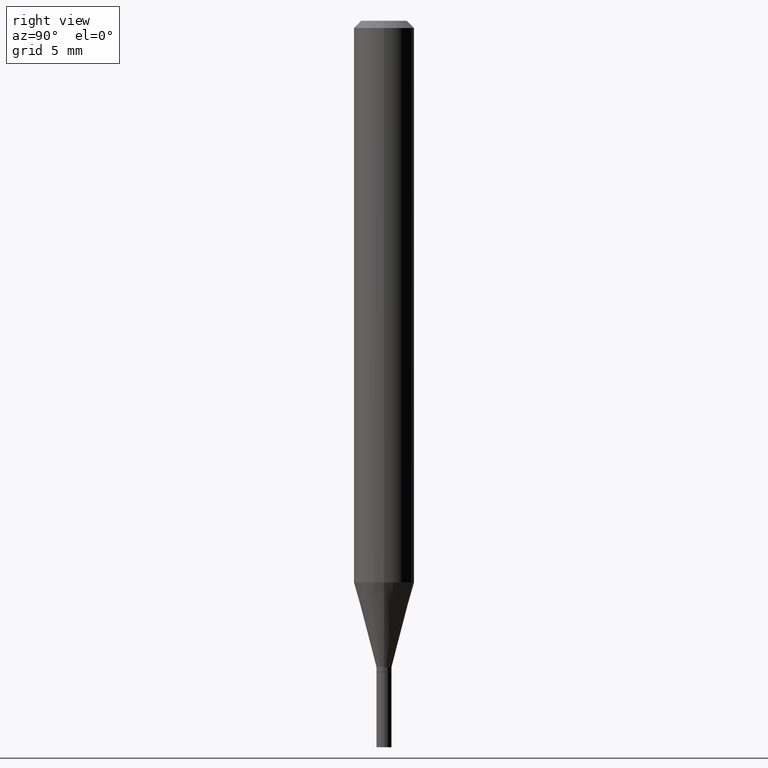
[diagram: clean part render]
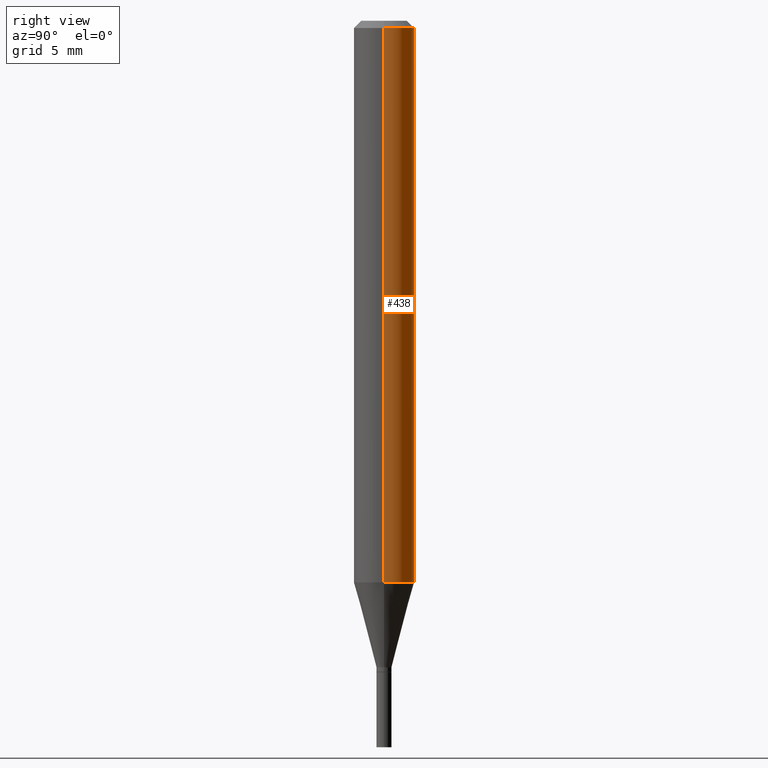
[diagram: same view with one face highlighted and labeled with its STEP entity id]
A machine part, right view. The second image highlights one B-rep face of the part: STEP entity #438.
In plain terms, the highlighted cylindrical surface (edge-blend (fillet) strip) has radius 1.5875 mm, axis along (-0, 0, 1).
Its self-contained STEP definition (entity closure, byte-faithful):
#17 = DIRECTION ( 'NONE',  ( -2.445468806185136877E-29, 3.491481338843145188E-15, 1.000000000000000000 ) ) ;
#28 = DIRECTION ( 'NONE',  ( 1.000000000000000000, -6.982962677686262766E-15, 0.000000000000000000 ) ) ;
#41 = EDGE_CURVE ( 'NONE', #64, #452, #169, .T. ) ;
#48 = VECTOR ( 'NONE', #262, 39.37007874015748143 ) ;
#56 = CARTESIAN_POINT ( 'NONE',  ( -0.06250000000000000000, -1.606446628738392225E-15, -0.01499999999999999944 ) ) ;
#63 = EDGE_CURVE ( 'NONE', #452, #81, #448, .T. ) ;
#64 = VERTEX_POINT ( 'NONE', #374 ) ;
#67 = ORIENTED_EDGE ( 'NONE', *, *, #63, .F. ) ;
#72 = CYLINDRICAL_SURFACE ( 'NONE', #212, 0.06250000000000000000 ) ;
#81 = VERTEX_POINT ( 'NONE', #56 ) ;
#104 = EDGE_LOOP ( 'NONE', ( #111, #156, #67, #128 ) ) ;
#111 = ORIENTED_EDGE ( 'NONE', *, *, #205, .T. ) ;
#117 = CARTESIAN_POINT ( 'NONE',  ( -0.06250000000000000000, 4.440892098500626162E-16, -3.074334431409316114E-30 ) ) ;
#120 = CIRCLE ( 'NONE', #389, 0.06250000000000000000 ) ;
#128 = ORIENTED_EDGE ( 'NONE', *, *, #41, .F. ) ;
#129 = FACE_OUTER_BOUND ( 'NONE', #104, .T. ) ;
#136 = DIRECTION ( 'NONE',  ( 1.000000000000000000, -6.982962677686266711E-15, 4.876176775795935793E-29 ) ) ;
#156 = ORIENTED_EDGE ( 'NONE', *, *, #269, .T. ) ;
#165 = CARTESIAN_POINT ( 'NONE',  ( 0.000000000000000000, 0.000000000000000000, 0.000000000000000000 ) ) ;
#169 = LINE ( 'NONE', #384, #48 ) ;
#176 = VERTEX_POINT ( 'NONE', #291 ) ;
#196 = DIRECTION ( 'NONE',  ( -2.445468806185136597E-29, 3.491481338843145583E-15, 1.000000000000000000 ) ) ;
#205 = EDGE_CURVE ( 'NONE', #64, #176, #120, .T. ) ;
#212 = AXIS2_PLACEMENT_3D ( 'NONE', #165, #343, #136 ) ;
#217 = CARTESIAN_POINT ( 'NONE',  ( 0.06250000000000000000, -4.888073874380388472E-16, -0.01499999999999999944 ) ) ;
#244 = AXIS2_PLACEMENT_3D ( 'NONE', #264, #411, #372 ) ;
#262 = DIRECTION ( 'NONE',  ( -2.445468806185136877E-29, 3.491481338843145188E-15, 1.000000000000000000 ) ) ;
#264 = CARTESIAN_POINT ( 'NONE',  ( 3.668203209277705088E-31, -5.237222008264718399E-17, -0.01499999999999999944 ) ) ;
#269 = EDGE_CURVE ( 'NONE', #176, #81, #330, .T. ) ;
#291 = CARTESIAN_POINT ( 'NONE',  ( -0.06250000000000000000, -3.604610247244199593E-15, -1.159593612044262922 ) ) ;
#304 = CARTESIAN_POINT ( 'NONE',  ( 2.835750006105794188E-29, -4.048699457094262209E-15, -1.159593612044262922 ) ) ;
#330 = LINE ( 'NONE', #117, #404 ) ;
#343 = DIRECTION ( 'NONE',  ( -2.445468806185136597E-29, 3.491481338843145583E-15, 1.000000000000000000 ) ) ;
#372 = DIRECTION ( 'NONE',  ( 1.000000000000000000, -6.982962677686266711E-15, 0.000000000000000000 ) ) ;
#374 = CARTESIAN_POINT ( 'NONE',  ( 0.06250000000000000000, -4.485134624449653879E-15, -1.159593612044262922 ) ) ;
#384 = CARTESIAN_POINT ( 'NONE',  ( 0.06250000000000000000, -4.364351673553916694E-16, 3.047610484872459871E-30 ) ) ;
#389 = AXIS2_PLACEMENT_3D ( 'NONE', #304, #196, #28 ) ;
#404 = VECTOR ( 'NONE', #17, 39.37007874015748143 ) ;
#411 = DIRECTION ( 'NONE',  ( -2.445468806185136597E-29, 3.491481338843145583E-15, 1.000000000000000000 ) ) ;
#438 = ADVANCED_FACE ( 'NONE', ( #129 ), #72, .T. ) ;
#448 = CIRCLE ( 'NONE', #244, 0.06250000000000000000 ) ;
#452 = VERTEX_POINT ( 'NONE', #217 ) ;